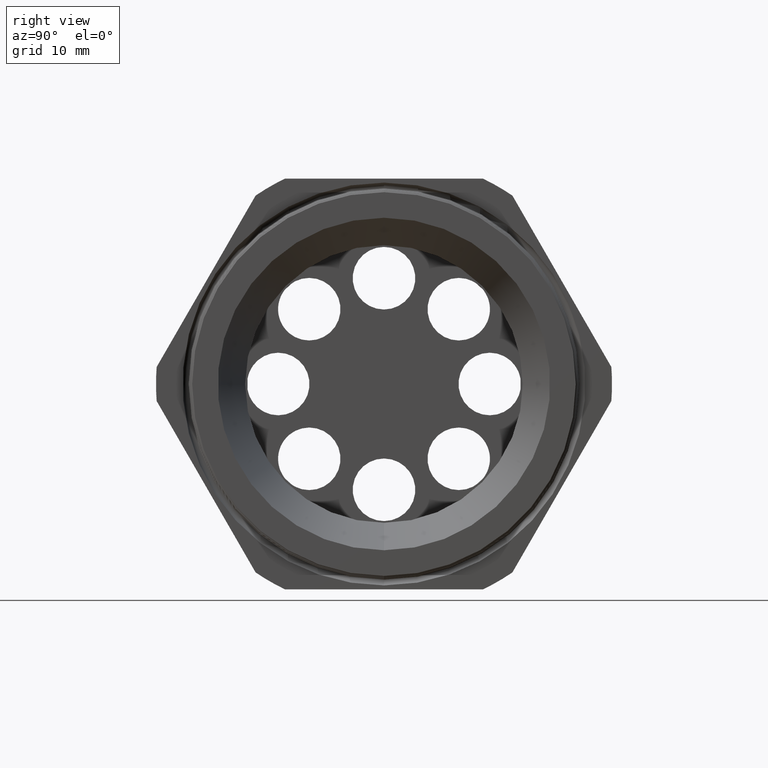
[diagram: clean part render]
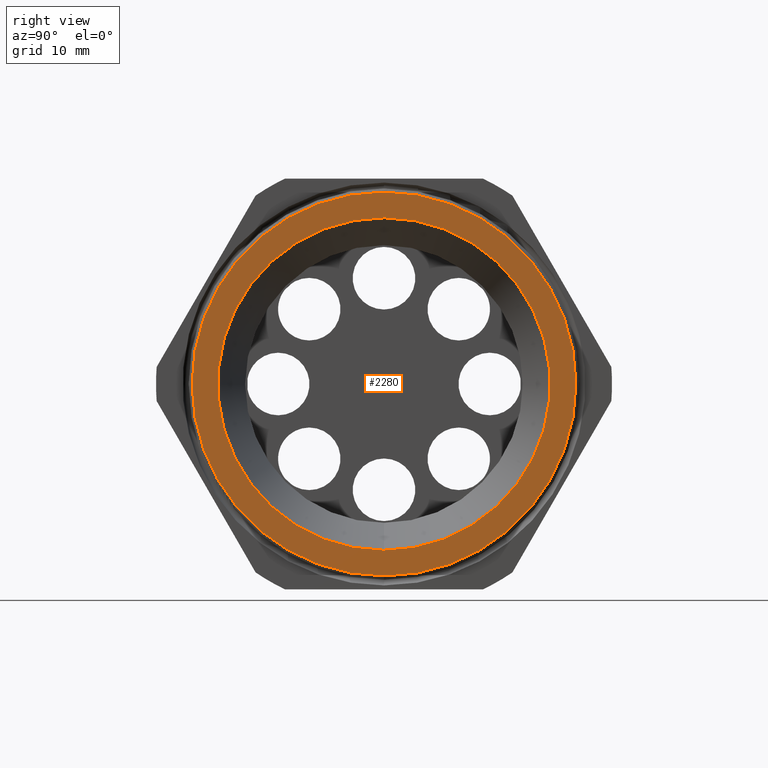
[diagram: same view with one face highlighted and labeled with its STEP entity id]
A machine part, right view. The second image highlights one B-rep face of the part: STEP entity #2280.
In plain terms, the highlighted planar face has unit normal (1, 0, 0).
Its self-contained STEP definition (entity closure, byte-faithful):
#424 = DIRECTION ( 'NONE',  ( 0.0000000000000000000, 0.0000000000000000000, -1.000000000000000000 ) ) ;
#425 = DIRECTION ( 'NONE',  ( 1.000000000000000000, 0.0000000000000000000, 0.0000000000000000000 ) ) ;
#426 = AXIS2_PLACEMENT_3D ( 'NONE', #432, #425, #424 ) ;
#427 = CIRCLE ( 'NONE', #426, 1.035989651745368600 ) ;
#432 = CARTESIAN_POINT ( 'NONE',  ( 0.2400000000000001000, 0.0000000000000000000, 0.0000000000000000000 ) ) ;
#1057 = CARTESIAN_POINT ( 'NONE',  ( 0.2400000000000001000, 1.268721410959747000E-016, 1.035989651745368600 ) ) ;
#1118 = CIRCLE ( 'NONE', #1182, 1.035989651745368600 ) ;
#1120 = CARTESIAN_POINT ( 'NONE',  ( 0.2400000000000001000, 0.0000000000000000000, -1.035989651745368600 ) ) ;
#1179 = DIRECTION ( 'NONE',  ( 0.0000000000000000000, 0.0000000000000000000, -1.000000000000000000 ) ) ;
#1180 = DIRECTION ( 'NONE',  ( 1.000000000000000000, 0.0000000000000000000, 0.0000000000000000000 ) ) ;
#1181 = CARTESIAN_POINT ( 'NONE',  ( 0.2400000000000001000, 0.0000000000000000000, 0.0000000000000000000 ) ) ;
#1182 = AXIS2_PLACEMENT_3D ( 'NONE', #1181, #1180, #1179 ) ;
#2255 = EDGE_LOOP ( 'NONE', ( #2256, #4612 ) ) ;
#2256 = ORIENTED_EDGE ( 'NONE', *, *, #4593, .T. ) ;
#2271 = VERTEX_POINT ( 'NONE', #5610 ) ;
#2277 = VERTEX_POINT ( 'NONE', #5603 ) ;
#2280 = ADVANCED_FACE ( 'NONE', ( #5597, #5596 ), #5593, .T. ) ;
#2283 = EDGE_CURVE ( 'NONE', #2277, #2271, #5656, .T. ) ;
#2518 = DIRECTION ( 'NONE',  ( 0.0000000000000000000, 0.0000000000000000000, -1.000000000000000000 ) ) ;
#2519 = DIRECTION ( 'NONE',  ( 1.000000000000000000, 0.0000000000000000000, 0.0000000000000000000 ) ) ;
#2520 = CARTESIAN_POINT ( 'NONE',  ( 0.2400000000000001000, 0.0000000000000000000, 0.0000000000000000000 ) ) ;
#2521 = AXIS2_PLACEMENT_3D ( 'NONE', #2520, #2519, #2518 ) ;
#2522 = CIRCLE ( 'NONE', #2521, 1.195717231016939700 ) ;
#3766 = EDGE_CURVE ( 'NONE', #4156, #4111, #427, .T. ) ;
#3767 = ORIENTED_EDGE ( 'NONE', *, *, #4157, .F. ) ;
#3786 = ORIENTED_EDGE ( 'NONE', *, *, #3766, .F. ) ;
#4111 = VERTEX_POINT ( 'NONE', #1057 ) ;
#4156 = VERTEX_POINT ( 'NONE', #1120 ) ;
#4157 = EDGE_CURVE ( 'NONE', #4111, #4156, #1118, .T. ) ;
#4593 = EDGE_CURVE ( 'NONE', #2271, #2277, #2522, .T. ) ;
#4612 = ORIENTED_EDGE ( 'NONE', *, *, #2283, .T. ) ;
#4615 = EDGE_LOOP ( 'NONE', ( #3786, #3767 ) ) ;
#5589 = DIRECTION ( 'NONE',  ( 0.0000000000000000000, 0.0000000000000000000, -1.000000000000000000 ) ) ;
#5590 = DIRECTION ( 'NONE',  ( 1.000000000000000000, 0.0000000000000000000, 0.0000000000000000000 ) ) ;
#5591 = CARTESIAN_POINT ( 'NONE',  ( 0.2400000000000001000, 1.035989651745368600, 0.0000000000000000000 ) ) ;
#5592 = AXIS2_PLACEMENT_3D ( 'NONE', #5591, #5590, #5589 ) ;
#5593 = PLANE ( 'NONE',  #5592 ) ;
#5596 = FACE_BOUND ( 'NONE', #4615, .T. ) ;
#5597 = FACE_OUTER_BOUND ( 'NONE', #2255, .T. ) ;
#5603 = CARTESIAN_POINT ( 'NONE',  ( 0.2400000000000001000, 1.466266477401930200E-016, -1.195717231016939700 ) ) ;
#5610 = CARTESIAN_POINT ( 'NONE',  ( 0.2400000000000001000, 0.0000000000000000000, 1.195717231016939700 ) ) ;
#5652 = DIRECTION ( 'NONE',  ( 0.0000000000000000000, 0.0000000000000000000, -1.000000000000000000 ) ) ;
#5653 = DIRECTION ( 'NONE',  ( 1.000000000000000000, 0.0000000000000000000, 0.0000000000000000000 ) ) ;
#5654 = CARTESIAN_POINT ( 'NONE',  ( 0.2400000000000001000, 0.0000000000000000000, 0.0000000000000000000 ) ) ;
#5655 = AXIS2_PLACEMENT_3D ( 'NONE', #5654, #5653, #5652 ) ;
#5656 = CIRCLE ( 'NONE', #5655, 1.195717231016939700 ) ;